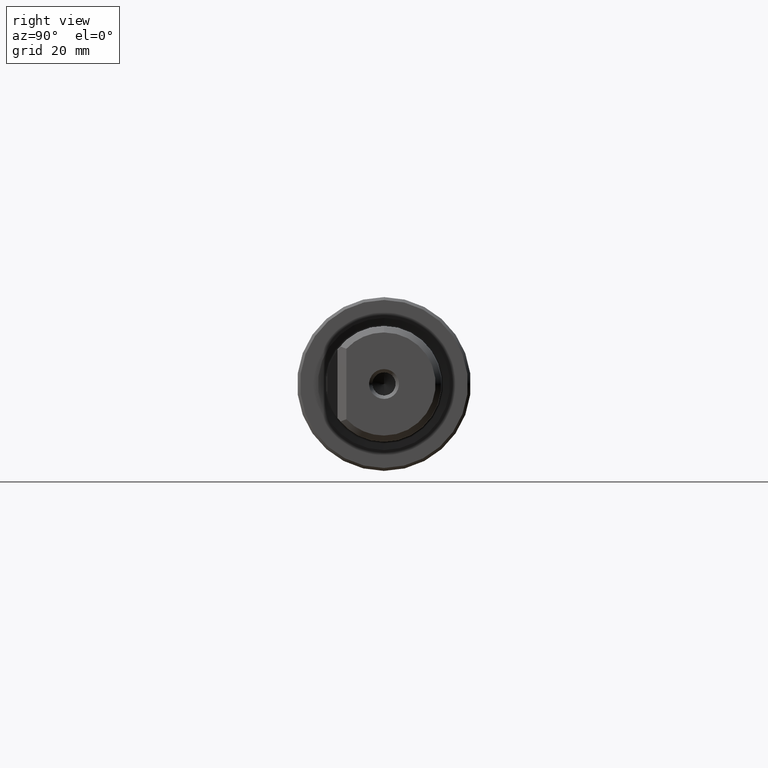
[diagram: clean part render]
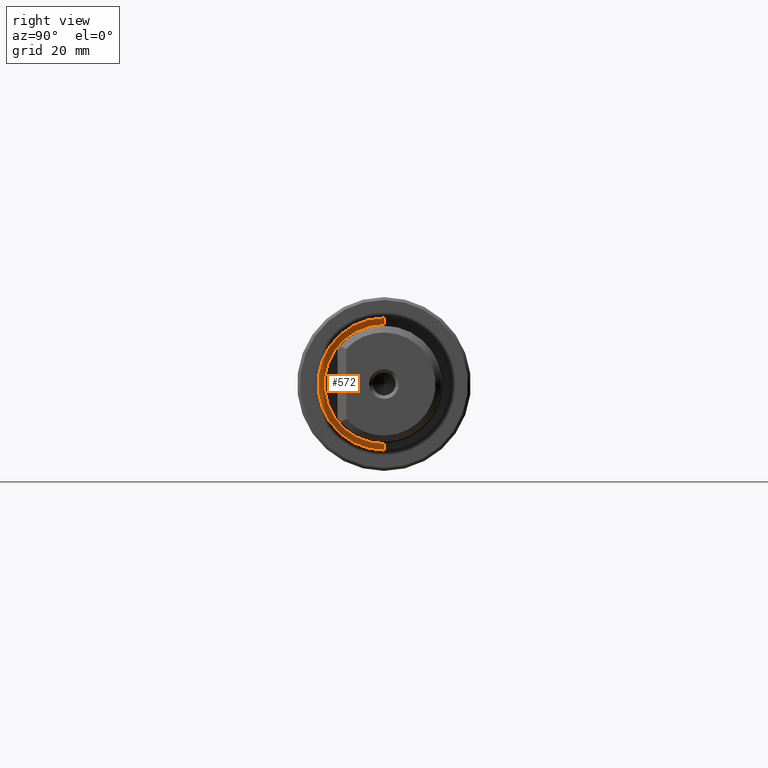
[diagram: same view with one face highlighted and labeled with its STEP entity id]
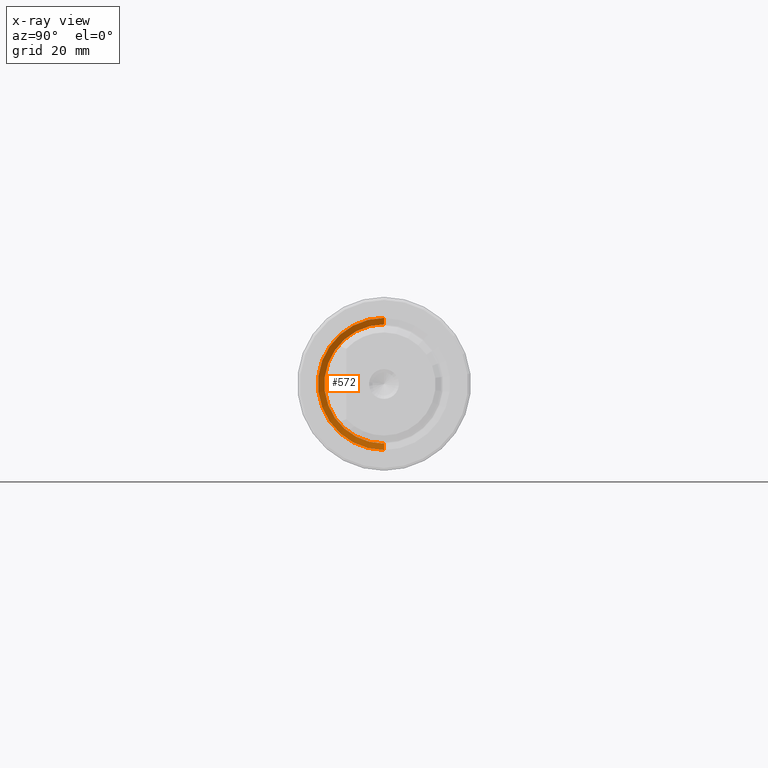
[diagram: x-ray of the same camera — body ghosted, the highlighted face saturated]
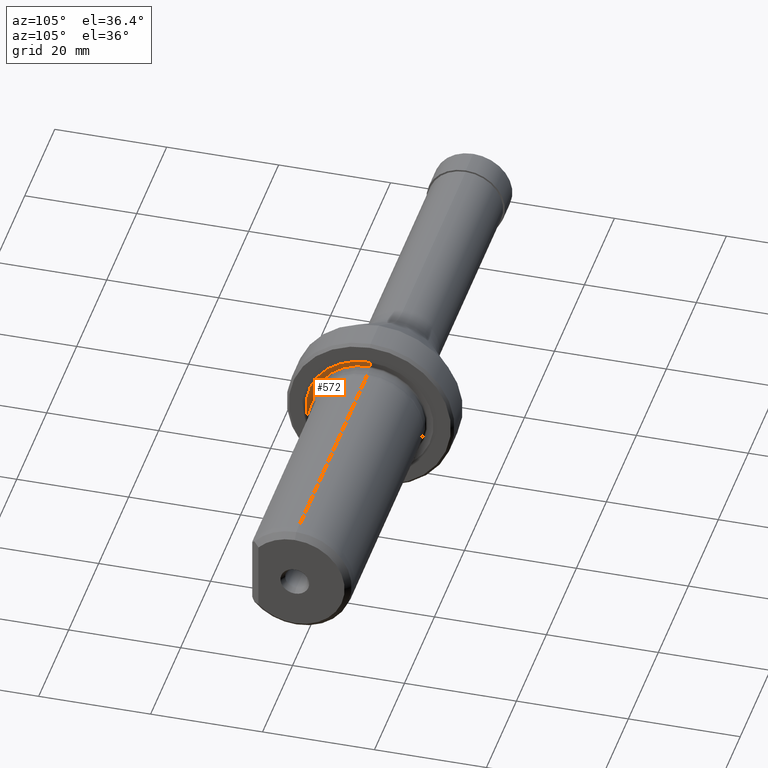
[diagram: same view with one face highlighted and labeled with its STEP entity id]
A machine part, right view. The second image highlights one B-rep face of the part: STEP entity #572.
The next image is the same camera in x-ray: the body ghosted, the highlighted face saturated — about 0% of this face is hidden behind the body in this view.
A second angle (auxiliary view) of the same face is appended — the face is thin or edge-on in the first view.
In plain terms, the highlighted conical surface has half-angle 74.85 deg.
Its self-contained STEP definition (entity closure, byte-faithful):
#20 = DIRECTION ( 'NONE',  ( 0.2613549732255702200, 0.0000000000000000000, -0.9652427559791689800 ) ) ;
#27 = DIRECTION ( 'NONE',  ( 0.2613549732255702200, 1.182081451510058700E-016, 0.9652427559791689800 ) ) ;
#122 = DIRECTION ( 'NONE',  ( 1.000000000000000000, -0.0000000000000000000, -0.0000000000000000000 ) ) ;
#124 = CARTESIAN_POINT ( 'NONE',  ( 68.15000000000000600, 0.0000000000000000000, 0.0000000000000000000 ) ) ;
#126 = AXIS2_PLACEMENT_3D ( 'NONE', #628, #630, #633 ) ;
#137 = DIRECTION ( 'NONE',  ( 0.0000000000000000000, 0.0000000000000000000, -1.000000000000000000 ) ) ;
#162 = CARTESIAN_POINT ( 'NONE',  ( 68.45000000000000300, 1.396097351027983600E-015, 11.40000000000000700 ) ) ;
#340 = ORIENTED_EDGE ( 'NONE', *, *, #893, .F. ) ;
#350 = EDGE_CURVE ( 'NONE', #1198, #1114, #1064, .T. ) ;
#367 = CARTESIAN_POINT ( 'NONE',  ( 68.45000000000000300, 0.0000000000000000000, -11.40000000000000700 ) ) ;
#369 = CARTESIAN_POINT ( 'NONE',  ( 68.15000000000000600, 0.0000000000000000000, -10.29203245983837600 ) ) ;
#372 = AXIS2_PLACEMENT_3D ( 'NONE', #819, #597, #725 ) ;
#463 = AXIS2_PLACEMENT_3D ( 'NONE', #124, #122, #137 ) ;
#572 = ADVANCED_FACE ( 'NONE', ( #826 ), #930, .F. ) ;
#575 = VERTEX_POINT ( 'NONE', #791 ) ;
#587 = VECTOR ( 'NONE', #20, 1000.000000000000100 ) ;
#594 = LINE ( 'NONE', #1168, #587 ) ;
#597 = DIRECTION ( 'NONE',  ( 1.000000000000000000, -0.0000000000000000000, -0.0000000000000000000 ) ) ;
#600 = VECTOR ( 'NONE', #27, 1000.000000000000100 ) ;
#605 = LINE ( 'NONE', #162, #600 ) ;
#612 = CIRCLE ( 'NONE', #126, 11.40000000000000700 ) ;
#615 = EDGE_LOOP ( 'NONE', ( #1108, #1026, #1194, #340 ) ) ;
#628 = CARTESIAN_POINT ( 'NONE',  ( 68.45000000000000300, 0.0000000000000000000, 0.0000000000000000000 ) ) ;
#630 = DIRECTION ( 'NONE',  ( 1.000000000000000000, -0.0000000000000000000, -0.0000000000000000000 ) ) ;
#633 = DIRECTION ( 'NONE',  ( 0.0000000000000000000, 0.0000000000000000000, -1.000000000000000000 ) ) ;
#725 = DIRECTION ( 'NONE',  ( 0.0000000000000000000, 0.0000000000000000000, -1.000000000000000000 ) ) ;
#732 = CARTESIAN_POINT ( 'NONE',  ( 68.15000000000000600, 1.260410460866172400E-015, 10.29203245983837600 ) ) ;
#791 = CARTESIAN_POINT ( 'NONE',  ( 68.45000000000000300, 1.396097351027983600E-015, 11.40000000000000700 ) ) ;
#819 = CARTESIAN_POINT ( 'NONE',  ( 68.45000000000000300, 0.0000000000000000000, 0.0000000000000000000 ) ) ;
#826 = FACE_OUTER_BOUND ( 'NONE', #615, .T. ) ;
#887 = EDGE_CURVE ( 'NONE', #1198, #575, #605, .T. ) ;
#890 = EDGE_CURVE ( 'NONE', #575, #1099, #612, .T. ) ;
#893 = EDGE_CURVE ( 'NONE', #1114, #1099, #594, .T. ) ;
#930 = CONICAL_SURFACE ( 'NONE', #372, 11.40000000000000700, 1.306370625903561200 ) ;
#1026 = ORIENTED_EDGE ( 'NONE', *, *, #887, .T. ) ;
#1064 = CIRCLE ( 'NONE', #463, 10.29203245983837100 ) ;
#1099 = VERTEX_POINT ( 'NONE', #367 ) ;
#1108 = ORIENTED_EDGE ( 'NONE', *, *, #350, .F. ) ;
#1114 = VERTEX_POINT ( 'NONE', #369 ) ;
#1168 = CARTESIAN_POINT ( 'NONE',  ( 68.45000000000000300, 0.0000000000000000000, -11.40000000000000700 ) ) ;
#1194 = ORIENTED_EDGE ( 'NONE', *, *, #890, .T. ) ;
#1198 = VERTEX_POINT ( 'NONE', #732 ) ;